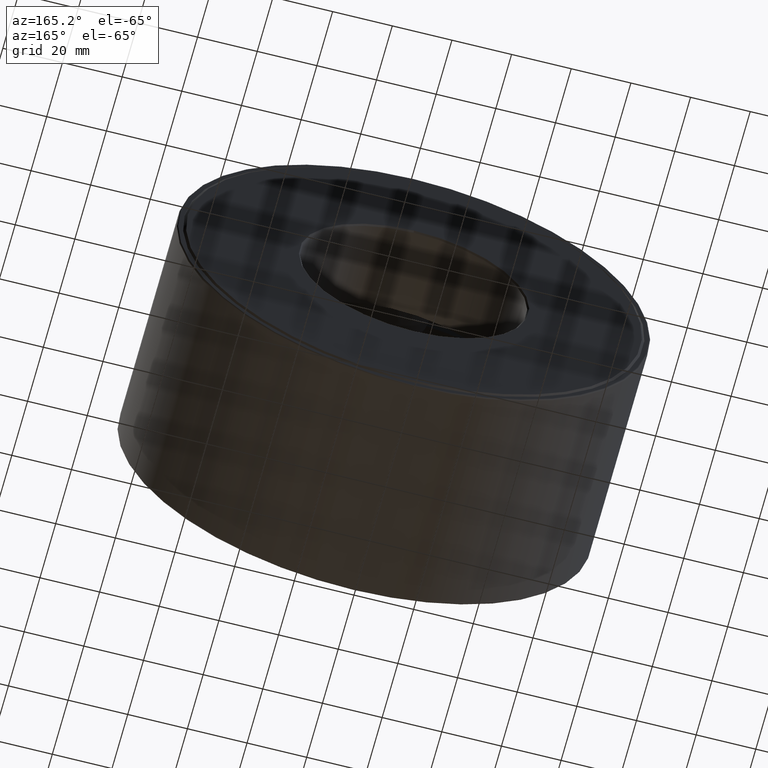
[diagram: clean part render]
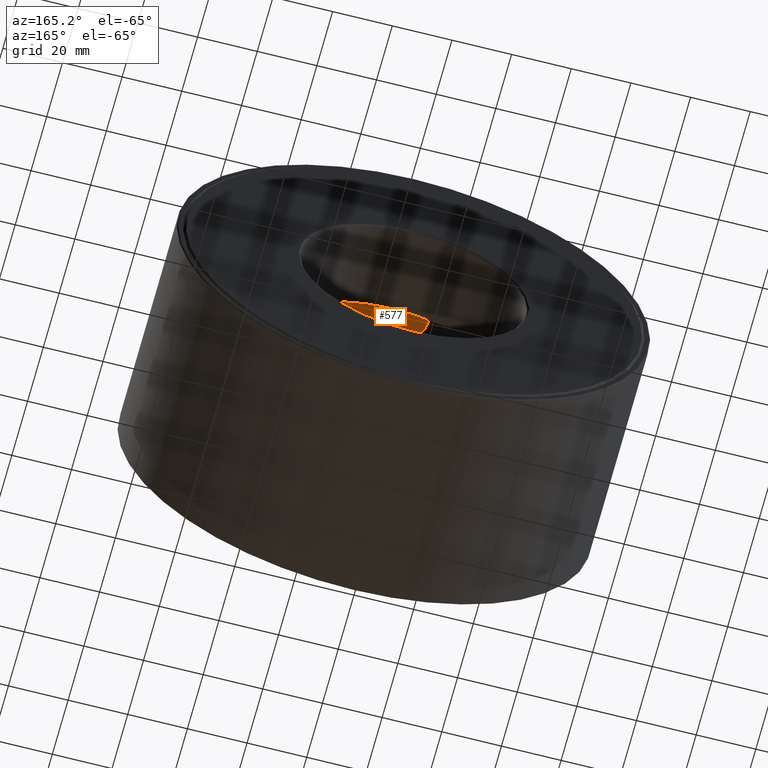
[diagram: same view with one face highlighted and labeled with its STEP entity id]
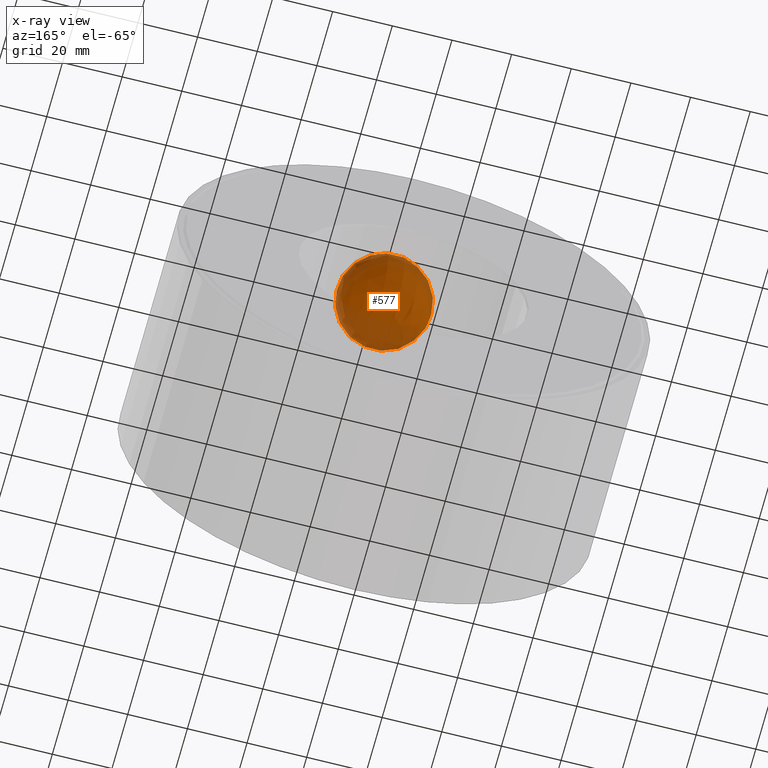
[diagram: x-ray of the same camera — body ghosted, the highlighted face saturated]
A machine part, auxiliary view. The second image highlights one B-rep face of the part: STEP entity #577.
The next image is the same camera in x-ray: the body ghosted, the highlighted face saturated — about 45% of this face is hidden behind the body in this view.
In plain terms, the highlighted spherical surface has radius 15.875 mm.
Its self-contained STEP definition (entity closure, byte-faithful):
#93 = DIRECTION ( 'NONE',  ( -3.491481338843133000E-015, 0.0000000000000000000, -1.000000000000000000 ) ) ;
#177 = CARTESIAN_POINT ( 'NONE',  ( 8.627450388281381400E-015, 1.499999999999999800, 2.471000000000000100 ) ) ;
#403 = AXIS2_PLACEMENT_3D ( 'NONE', #177, #519, #93 ) ;
#519 = DIRECTION ( 'NONE',  ( -1.000000000000000000, 0.0000000000000000000, 3.491481338843133000E-015 ) ) ;
#569 = SPHERICAL_SURFACE ( 'NONE', #403, 0.6250000000000000000 ) ;
#577 = ADVANCED_FACE ( 'NONE', ( ), #569, .T. ) ;